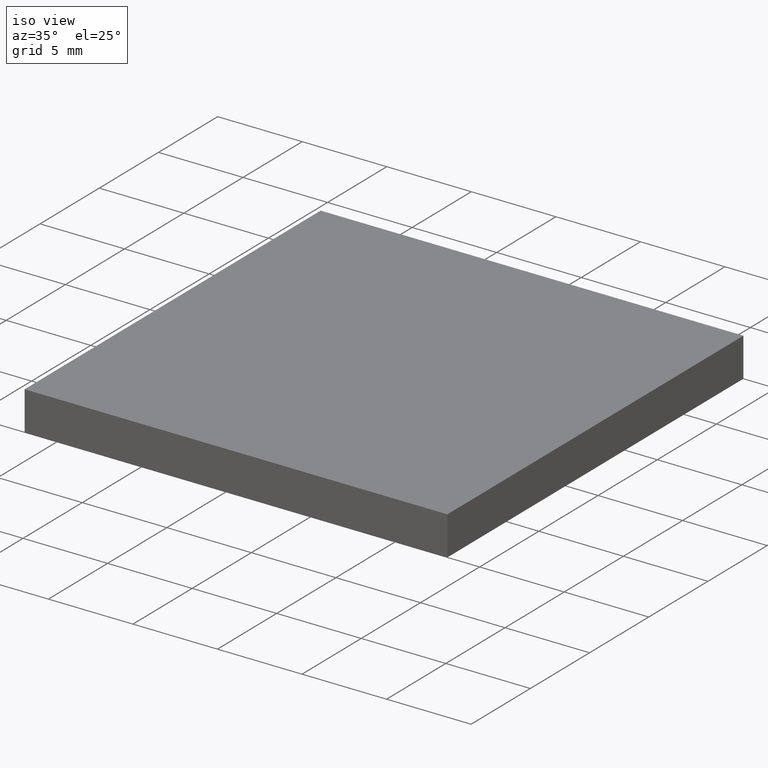
[diagram: clean part render]
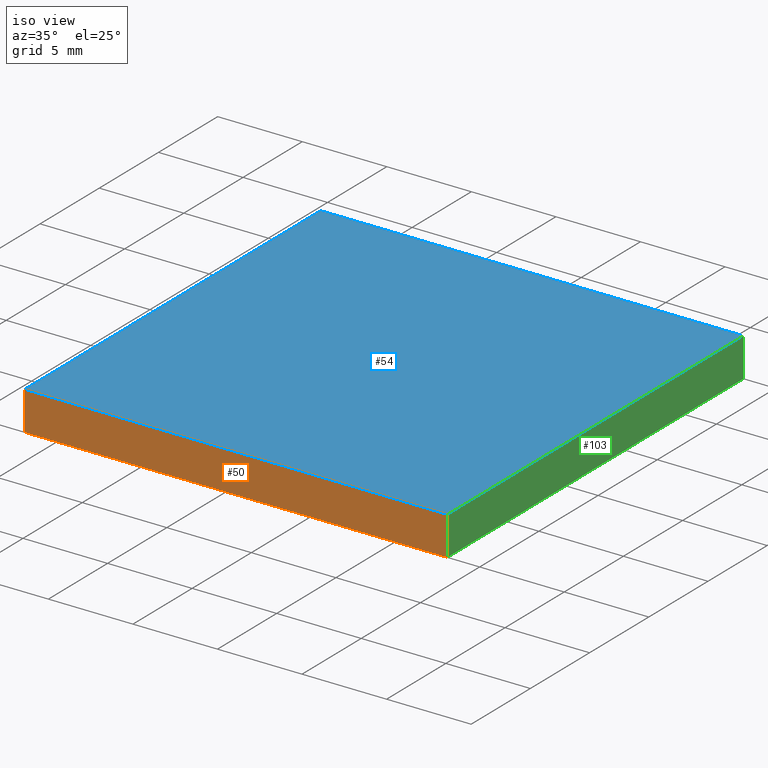
[diagram: same view with three faces highlighted in distinct colors, each labeled with its STEP entity id]
A machine part, iso view with three faces highlighted in distinct colors.
Their STEP definitions:

[orange] entity #50 — the highlighted planar face has unit normal (0, 1, 0).
#2 = EDGE_CURVE ( 'NONE', #193, #28, #165, .T. ) ;
#4 = VECTOR ( 'NONE', #199, 1000.000000000000000 ) ;
#6 = CARTESIAN_POINT ( 'NONE',  ( 113.7479357758850800, 49.06324183452660000, 2.299999999999999800 ) ) ;
#9 = DIRECTION ( 'NONE',  ( 0.0000000000000000000, -0.0000000000000000000, 1.000000000000000000 ) ) ;
#15 = LINE ( 'NONE', #110, #4 ) ;
#19 = AXIS2_PLACEMENT_3D ( 'NONE', #121, #38, #9 ) ;
#28 = VERTEX_POINT ( 'NONE', #6 ) ;
#38 = DIRECTION ( 'NONE',  ( 0.0000000000000000000, 1.000000000000000000, 0.0000000000000000000 ) ) ;
#50 = ADVANCED_FACE ( 'NONE', ( #113 ), #90, .F. ) ;
#53 = CARTESIAN_POINT ( 'NONE',  ( 88.74793577588508200, 49.06324183452660000, 0.0000000000000000000 ) ) ;
#55 = CARTESIAN_POINT ( 'NONE',  ( 113.7479357758850800, 49.06324183452660000, 2.299999999999999800 ) ) ;
#58 = LINE ( 'NONE', #55, #96 ) ;
#70 = VERTEX_POINT ( 'NONE', #185 ) ;
#74 = ORIENTED_EDGE ( 'NONE', *, *, #104, .T. ) ;
#77 = EDGE_CURVE ( 'NONE', #193, #70, #15, .T. ) ;
#85 = ORIENTED_EDGE ( 'NONE', *, *, #77, .T. ) ;
#87 = DIRECTION ( 'NONE',  ( 1.000000000000000000, 0.0000000000000000000, 0.0000000000000000000 ) ) ;
#88 = EDGE_LOOP ( 'NONE', ( #74, #132, #102, #85 ) ) ;
#90 = PLANE ( 'NONE',  #19 ) ;
#96 = VECTOR ( 'NONE', #135, 1000.000000000000000 ) ;
#102 = ORIENTED_EDGE ( 'NONE', *, *, #2, .F. ) ;
#104 = EDGE_CURVE ( 'NONE', #70, #159, #161, .T. ) ;
#106 = CARTESIAN_POINT ( 'NONE',  ( 88.74793577588508200, 49.06324183452660000, 2.299999999999999800 ) ) ;
#108 = VECTOR ( 'NONE', #149, 1000.000000000000000 ) ;
#109 = CARTESIAN_POINT ( 'NONE',  ( 113.7479357758850800, 49.06324183452660000, 0.0000000000000000000 ) ) ;
#110 = CARTESIAN_POINT ( 'NONE',  ( 88.74793577588508200, 49.06324183452660000, 2.299999999999999800 ) ) ;
#113 = FACE_OUTER_BOUND ( 'NONE', #88, .T. ) ;
#121 = CARTESIAN_POINT ( 'NONE',  ( 88.74793577588508200, 49.06324183452660000, 2.299999999999999800 ) ) ;
#132 = ORIENTED_EDGE ( 'NONE', *, *, #143, .F. ) ;
#135 = DIRECTION ( 'NONE',  ( -0.0000000000000000000, -0.0000000000000000000, -1.000000000000000000 ) ) ;
#143 = EDGE_CURVE ( 'NONE', #28, #159, #58, .T. ) ;
#149 = DIRECTION ( 'NONE',  ( 1.000000000000000000, 0.0000000000000000000, 0.0000000000000000000 ) ) ;
#151 = CARTESIAN_POINT ( 'NONE',  ( 88.74793577588508200, 49.06324183452660000, 2.299999999999999800 ) ) ;
#159 = VERTEX_POINT ( 'NONE', #109 ) ;
#161 = LINE ( 'NONE', #53, #108 ) ;
#165 = LINE ( 'NONE', #106, #189 ) ;
#185 = CARTESIAN_POINT ( 'NONE',  ( 88.74793577588508200, 49.06324183452660000, 0.0000000000000000000 ) ) ;
#189 = VECTOR ( 'NONE', #87, 1000.000000000000000 ) ;
#193 = VERTEX_POINT ( 'NONE', #151 ) ;
#199 = DIRECTION ( 'NONE',  ( -0.0000000000000000000, -0.0000000000000000000, -1.000000000000000000 ) ) ;

[blue] entity #54 — the highlighted planar face has unit normal (-0, 0, 1).
#2 = EDGE_CURVE ( 'NONE', #193, #28, #165, .T. ) ;
#6 = CARTESIAN_POINT ( 'NONE',  ( 113.7479357758850800, 49.06324183452660000, 2.299999999999999800 ) ) ;
#8 = ORIENTED_EDGE ( 'NONE', *, *, #2, .T. ) ;
#10 = DIRECTION ( 'NONE',  ( -5.551115123125785700E-016, -1.000000000000000000, 0.0000000000000000000 ) ) ;
#11 = CARTESIAN_POINT ( 'NONE',  ( 113.7479357758850700, 74.06324183452659300, 2.299999999999999800 ) ) ;
#13 = ORIENTED_EDGE ( 'NONE', *, *, #144, .T. ) ;
#18 = LINE ( 'NONE', #69, #43 ) ;
#28 = VERTEX_POINT ( 'NONE', #6 ) ;
#31 = AXIS2_PLACEMENT_3D ( 'NONE', #35, #183, #91 ) ;
#35 = CARTESIAN_POINT ( 'NONE',  ( 0.0000000000000000000, 0.0000000000000000000, 2.299999999999999800 ) ) ;
#39 = VERTEX_POINT ( 'NONE', #46 ) ;
#43 = VECTOR ( 'NONE', #52, 1000.000000000000000 ) ;
#45 = EDGE_CURVE ( 'NONE', #39, #61, #18, .T. ) ;
#46 = CARTESIAN_POINT ( 'NONE',  ( 113.7479357758850700, 74.06324183452659300, 2.299999999999999800 ) ) ;
#47 = PLANE ( 'NONE',  #31 ) ;
#49 = VECTOR ( 'NONE', #10, 1000.000000000000000 ) ;
#51 = ORIENTED_EDGE ( 'NONE', *, *, #150, .T. ) ;
#52 = DIRECTION ( 'NONE',  ( -1.000000000000000000, -0.0000000000000000000, -0.0000000000000000000 ) ) ;
#54 = ADVANCED_FACE ( 'NONE', ( #158 ), #47, .T. ) ;
#60 = VECTOR ( 'NONE', #166, 1000.000000000000000 ) ;
#61 = VERTEX_POINT ( 'NONE', #196 ) ;
#67 = LINE ( 'NONE', #11, #60 ) ;
#69 = CARTESIAN_POINT ( 'NONE',  ( 88.74793577588509700, 74.06324183452659300, 2.299999999999999800 ) ) ;
#82 = ORIENTED_EDGE ( 'NONE', *, *, #45, .T. ) ;
#87 = DIRECTION ( 'NONE',  ( 1.000000000000000000, 0.0000000000000000000, 0.0000000000000000000 ) ) ;
#91 = DIRECTION ( 'NONE',  ( 1.000000000000000000, 0.0000000000000000000, 0.0000000000000000000 ) ) ;
#105 = LINE ( 'NONE', #198, #49 ) ;
#106 = CARTESIAN_POINT ( 'NONE',  ( 88.74793577588508200, 49.06324183452660000, 2.299999999999999800 ) ) ;
#144 = EDGE_CURVE ( 'NONE', #28, #39, #67, .T. ) ;
#150 = EDGE_CURVE ( 'NONE', #61, #193, #105, .T. ) ;
#151 = CARTESIAN_POINT ( 'NONE',  ( 88.74793577588508200, 49.06324183452660000, 2.299999999999999800 ) ) ;
#158 = FACE_OUTER_BOUND ( 'NONE', #197, .T. ) ;
#165 = LINE ( 'NONE', #106, #189 ) ;
#166 = DIRECTION ( 'NONE',  ( -5.551115123125785700E-016, 1.000000000000000000, -0.0000000000000000000 ) ) ;
#183 = DIRECTION ( 'NONE',  ( -0.0000000000000000000, 0.0000000000000000000, 1.000000000000000000 ) ) ;
#189 = VECTOR ( 'NONE', #87, 1000.000000000000000 ) ;
#193 = VERTEX_POINT ( 'NONE', #151 ) ;
#196 = CARTESIAN_POINT ( 'NONE',  ( 88.74793577588509700, 74.06324183452659300, 2.299999999999999800 ) ) ;
#197 = EDGE_LOOP ( 'NONE', ( #51, #8, #13, #82 ) ) ;
#198 = CARTESIAN_POINT ( 'NONE',  ( 88.74793577588509700, 74.06324183452659300, 2.299999999999999800 ) ) ;

[green] entity #103 — the highlighted planar face has unit normal (-1, -0, 0).
#3 = EDGE_LOOP ( 'NONE', ( #112, #137, #180, #162 ) ) ;
#6 = CARTESIAN_POINT ( 'NONE',  ( 113.7479357758850800, 49.06324183452660000, 2.299999999999999800 ) ) ;
#11 = CARTESIAN_POINT ( 'NONE',  ( 113.7479357758850700, 74.06324183452659300, 2.299999999999999800 ) ) ;
#23 = DIRECTION ( 'NONE',  ( -0.0000000000000000000, -0.0000000000000000000, -1.000000000000000000 ) ) ;
#25 = VECTOR ( 'NONE', #23, 1000.000000000000000 ) ;
#28 = VERTEX_POINT ( 'NONE', #6 ) ;
#32 = VECTOR ( 'NONE', #169, 1000.000000000000000 ) ;
#34 = PLANE ( 'NONE',  #148 ) ;
#39 = VERTEX_POINT ( 'NONE', #46 ) ;
#46 = CARTESIAN_POINT ( 'NONE',  ( 113.7479357758850700, 74.06324183452659300, 2.299999999999999800 ) ) ;
#55 = CARTESIAN_POINT ( 'NONE',  ( 113.7479357758850800, 49.06324183452660000, 2.299999999999999800 ) ) ;
#57 = CARTESIAN_POINT ( 'NONE',  ( 113.7479357758850700, 74.06324183452659300, 2.299999999999999800 ) ) ;
#58 = LINE ( 'NONE', #55, #96 ) ;
#60 = VECTOR ( 'NONE', #166, 1000.000000000000000 ) ;
#67 = LINE ( 'NONE', #11, #60 ) ;
#68 = FACE_OUTER_BOUND ( 'NONE', #3, .T. ) ;
#93 = DIRECTION ( 'NONE',  ( -1.000000000000000000, -5.551115123125785700E-016, 0.0000000000000000000 ) ) ;
#96 = VECTOR ( 'NONE', #135, 1000.000000000000000 ) ;
#100 = EDGE_CURVE ( 'NONE', #159, #195, #101, .T. ) ;
#101 = LINE ( 'NONE', #133, #32 ) ;
#103 = ADVANCED_FACE ( 'NONE', ( #68 ), #34, .F. ) ;
#109 = CARTESIAN_POINT ( 'NONE',  ( 113.7479357758850800, 49.06324183452660000, 0.0000000000000000000 ) ) ;
#112 = ORIENTED_EDGE ( 'NONE', *, *, #100, .T. ) ;
#117 = DIRECTION ( 'NONE',  ( 5.551115123125785700E-016, -1.000000000000000000, 0.0000000000000000000 ) ) ;
#122 = CARTESIAN_POINT ( 'NONE',  ( 113.7479357758850700, 74.06324183452659300, 0.0000000000000000000 ) ) ;
#133 = CARTESIAN_POINT ( 'NONE',  ( 113.7479357758850700, 74.06324183452659300, 0.0000000000000000000 ) ) ;
#135 = DIRECTION ( 'NONE',  ( -0.0000000000000000000, -0.0000000000000000000, -1.000000000000000000 ) ) ;
#137 = ORIENTED_EDGE ( 'NONE', *, *, #155, .F. ) ;
#143 = EDGE_CURVE ( 'NONE', #28, #159, #58, .T. ) ;
#144 = EDGE_CURVE ( 'NONE', #28, #39, #67, .T. ) ;
#148 = AXIS2_PLACEMENT_3D ( 'NONE', #182, #93, #117 ) ;
#155 = EDGE_CURVE ( 'NONE', #39, #195, #179, .T. ) ;
#159 = VERTEX_POINT ( 'NONE', #109 ) ;
#162 = ORIENTED_EDGE ( 'NONE', *, *, #143, .T. ) ;
#166 = DIRECTION ( 'NONE',  ( -5.551115123125785700E-016, 1.000000000000000000, -0.0000000000000000000 ) ) ;
#169 = DIRECTION ( 'NONE',  ( -5.551115123125785700E-016, 1.000000000000000000, -0.0000000000000000000 ) ) ;
#179 = LINE ( 'NONE', #57, #25 ) ;
#180 = ORIENTED_EDGE ( 'NONE', *, *, #144, .F. ) ;
#182 = CARTESIAN_POINT ( 'NONE',  ( 113.7479357758850700, 74.06324183452659300, 2.299999999999999800 ) ) ;
#195 = VERTEX_POINT ( 'NONE', #122 ) ;